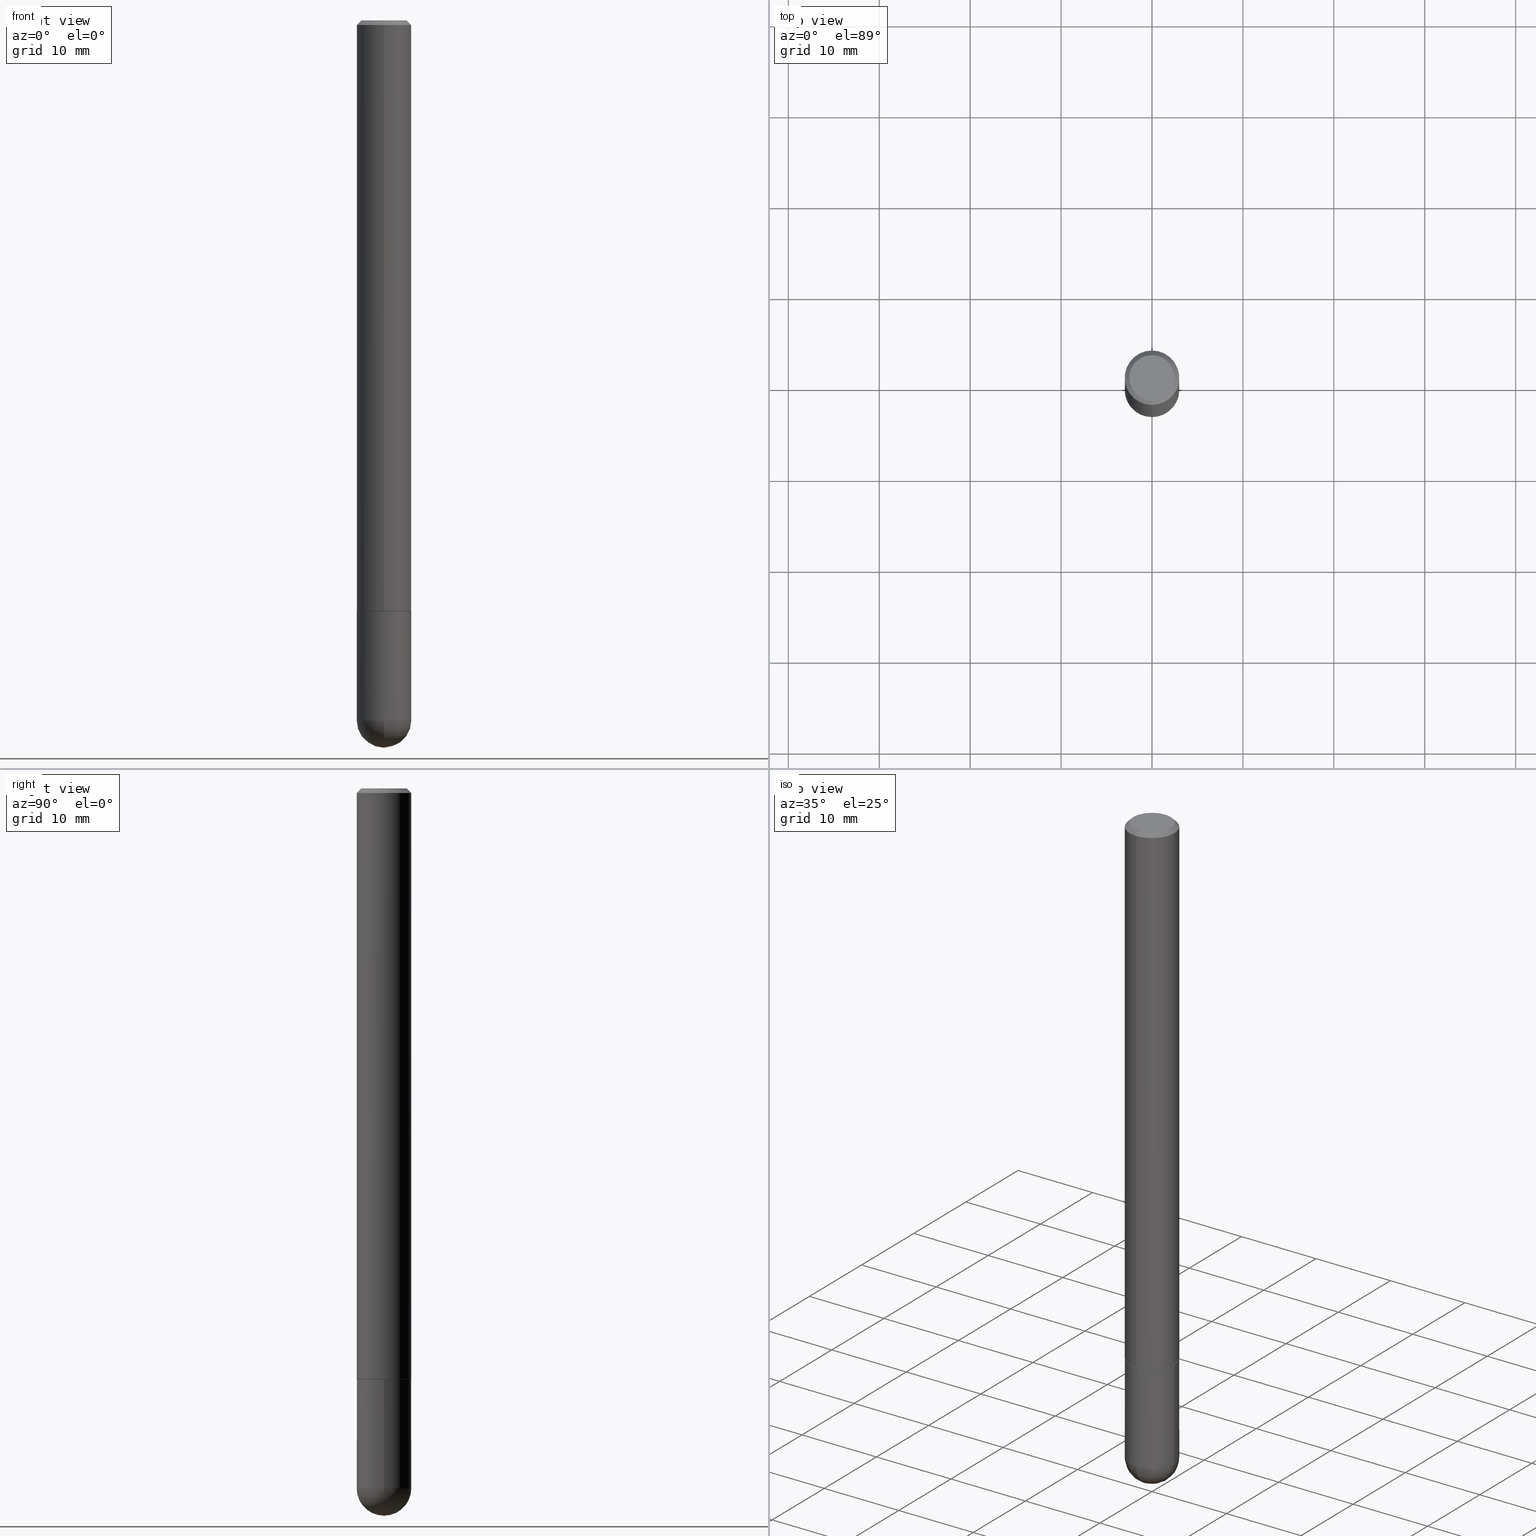
[diagram: canonical four-view strip — front | top / right | iso, engineering-drawing reading convention]
A machine part, canonical four-view strip (front | top / right | iso — engineering-drawing reading convention). The complete STEP part file that produces these views, byte-faithful:
ISO-10303-21;
HEADER;
FILE_DESCRIPTION (( 'STEP AP203' ),
    '1' );
FILE_NAME ('43902.STEP',
    '2024-04-10T11:44:43',
    ( '' ),
    ( '' ),
    'SwSTEP 2.0',
    'SolidWorks 2023',
    '' );
FILE_SCHEMA (( 'CONFIG_CONTROL_DESIGN' ));
ENDSEC;

DATA;
#1 = CARTESIAN_POINT ( 'NONE',  ( -8.391509709326067066E-16, -0.1181000000000109740, -3.031499999999998973 ) ) ;
#2 = FACE_OUTER_BOUND ( 'NONE', #132, .T. ) ;
#3 = VERTEX_POINT ( 'NONE', #373 ) ;
#4 = EDGE_CURVE ( 'NONE', #65, #8, #407, .T. ) ;
#5 = DIRECTION ( 'NONE',  ( 1.000000000000000000, -6.982962677686266711E-15, 4.876176775795935793E-29 ) ) ;
#6 = VECTOR ( 'NONE', #367, 39.37007874015748143 ) ;
#7 = AXIS2_PLACEMENT_3D ( 'NONE', #83, #274, #138 ) ;
#8 = VERTEX_POINT ( 'NONE', #249 ) ;
#9 = ORIENTED_EDGE ( 'NONE', *, *, #336, .T. ) ;
#10 = DIRECTION ( 'NONE',  ( -2.445468806185136597E-29, 3.491481338843145583E-15, 1.000000000000000000 ) ) ;
#11 = VERTEX_POINT ( 'NONE', #139 ) ;
#12 = FACE_OUTER_BOUND ( 'NONE', #106, .T. ) ;
#13 = EDGE_CURVE ( 'NONE', #239, #385, #41, .T. ) ;
#14 = CC_DESIGN_APPROVAL ( #115, ( #318 ) ) ;
#15 = EDGE_CURVE ( 'NONE', #356, #11, #142, .T. ) ;
#16 = CIRCLE ( 'NONE', #323, 0.1181000000000002881 ) ;
#17 = VERTEX_POINT ( 'NONE', #207 ) ;
#18 = LINE ( 'NONE', #277, #87 ) ;
#19 = DIRECTION ( 'NONE',  ( 6.982962677686265922E-15, 1.000000000000000000, -3.469747663417776213E-15 ) ) ;
#20 = CARTESIAN_POINT ( 'NONE',  ( 8.246878922347486570E-16, 0.1180999999999999689, -0.02000000000000048614 ) ) ;
#21 = AXIS2_PLACEMENT_3D ( 'NONE', #244, #284, #176 ) ;
#22 = LINE ( 'NONE', #310, #307 ) ;
#23 = AXIS2_PLACEMENT_3D ( 'NONE', #315, #10, #33 ) ;
#24 = DIRECTION ( 'NONE',  ( 6.982962677686265922E-15, 1.000000000000000000, -4.626330217890359081E-15 ) ) ;
#25 = DIRECTION ( 'NONE',  ( -6.982962677686265922E-15, -1.000000000000000000, 3.469747663417776213E-15 ) ) ;
#26 = PERSON_AND_ORGANIZATION ( #231, #178 ) ;
#27 = EDGE_CURVE ( 'NONE', #17, #125, #148, .T. ) ;
#28 = DIRECTION ( 'NONE',  ( -2.445468806185136877E-29, 3.491481338843145188E-15, 1.000000000000000000 ) ) ;
#29 = PERSON_AND_ORGANIZATION ( #231, #178 ) ;
#30 = AXIS2_PLACEMENT_3D ( 'NONE', #281, #403, #376 ) ;
#31 = LOCAL_TIME ( 7, 44, 43.00000000000000000, #280 ) ;
#32 = CC_DESIGN_DATE_AND_TIME_ASSIGNMENT ( #210, #180, ( #410 ) ) ;
#33 = DIRECTION ( 'NONE',  ( 1.000000000000000000, -6.982962677686266711E-15, 4.876176775795935793E-29 ) ) ;
#34 = AXIS2_PLACEMENT_3D ( 'NONE', #392, #240, #47 ) ;
#35 = ORIENTED_EDGE ( 'NONE', *, *, #37, .F. ) ;
#36 = CARTESIAN_POINT ( 'NONE',  ( 7.082318908036356584E-29, -1.105860804684304690E-14, -3.031500000000000306 ) ) ;
#37 = EDGE_CURVE ( 'NONE', #8, #125, #256, .T. ) ;
#38 = EDGE_LOOP ( 'NONE', ( #76, #406 ) ) ;
#39 = CYLINDRICAL_SURFACE ( 'NONE', #23, 0.1181000000000000383 ) ;
#40 = EDGE_LOOP ( 'NONE', ( #271, #391, #127, #267, #165 ) ) ;
#41 = CIRCLE ( 'NONE', #21, 0.1181000000000000383 ) ;
#42 = ADVANCED_FACE ( 'NONE', ( #56 ), #80, .F. ) ;
#43 = ORIENTED_EDGE ( 'NONE', *, *, #108, .T. ) ;
#44 = EDGE_LOOP ( 'NONE', ( #74, #69, #104, #35 ) ) ;
#45 = CARTESIAN_POINT ( 'NONE',  ( 4.901918497829555222E-31, -6.967237424715466014E-17, -0.02000000000000007674 ) ) ;
#46 = ORIENTED_EDGE ( 'NONE', *, *, #220, .F. ) ;
#47 = DIRECTION ( 'NONE',  ( -6.982962677686265922E-15, -1.000000000000000000, 3.483618712357719695E-15 ) ) ;
#48 = AXIS2_PLACEMENT_3D ( 'NONE', #174, #179, #25 ) ;
#49 = CONICAL_SURFACE ( 'NONE', #247, 0.1181000000000000383, 0.7853981633974477239 ) ;
#50 = CARTESIAN_POINT ( 'NONE',  ( -0.1181000000000000383, 8.391509709326785915E-16, -5.809262341591045886E-30 ) ) ;
#51 = MANIFOLD_SOLID_BREP ( 'Body-Move/Copy2[1]', #203 ) ;
#52 = DIRECTION ( 'NONE',  ( -1.000000000000000000, 6.982962677686265922E-15, -4.883557194083112340E-29 ) ) ;
#53 = CARTESIAN_POINT ( 'NONE',  ( -8.246878922347491501E-16, -0.1181000000000001632, 4.114153699294472715E-16 ) ) ;
#54 = DIRECTION ( 'NONE',  ( -2.445468806185136597E-29, 3.491481338843145583E-15, 1.000000000000000000 ) ) ;
#55 =( NAMED_UNIT ( * ) PLANE_ANGLE_UNIT ( ) SI_UNIT ( $, .RADIAN. ) );
#56 = FACE_OUTER_BOUND ( 'NONE', #38, .T. ) ;
#57 = APPROVAL_PERSON_ORGANIZATION ( #90, #170, #404 ) ;
#58 = CARTESIAN_POINT ( 'NONE',  ( 8.246878922348107798E-16, 0.1180999999999911010, -2.559000000000000608 ) ) ;
#59 = APPROVAL_ROLE ( '' ) ;
#60 = EDGE_CURVE ( 'NONE', #8, #65, #16, .T. ) ;
#61 = CARTESIAN_POINT ( 'NONE',  ( 7.413438685950241710E-29, -1.058442567870299344E-14, -3.031499999999999417 ) ) ;
#62 = CLOSED_SHELL ( 'NONE', ( #328, #229, #238, #99, #395, #151, #42, #390 ) ) ;
#63 = AXIS2_PLACEMENT_3D ( 'NONE', #262, #292, #5 ) ;
#64 = CALENDAR_DATE ( 2024, 10, 4 ) ;
#65 = VERTEX_POINT ( 'NONE', #209 ) ;
#66 = FACE_OUTER_BOUND ( 'NONE', #351, .T. ) ;
#67 = APPLICATION_CONTEXT ( 'configuration controlled 3d designs of mechanical parts and assemblies' ) ;
#68 = DIRECTION ( 'NONE',  ( 1.000000000000000000, -6.982962677686270655E-15, 0.000000000000000000 ) ) ;
#69 = ORIENTED_EDGE ( 'NONE', *, *, #157, .T. ) ;
#70 = SPHERICAL_SURFACE ( 'NONE', #141, 0.1181000000000002742 ) ;
#71 = VERTEX_POINT ( 'NONE', #205 ) ;
#72 = FACE_OUTER_BOUND ( 'NONE', #169, .T. ) ;
#73 = AXIS2_PLACEMENT_3D ( 'NONE', #242, #52, #198 ) ;
#74 = ORIENTED_EDGE ( 'NONE', *, *, #60, .T. ) ;
#75 = CARTESIAN_POINT ( 'NONE',  ( -8.177049295569991395E-16, -0.1171000000000089192, -2.559000000000000163 ) ) ;
#76 = ORIENTED_EDGE ( 'NONE', *, *, #183, .F. ) ;
#77 = CARTESIAN_POINT ( 'NONE',  ( 7.082318908036356584E-29, -1.105860804684304690E-14, -3.031500000000000306 ) ) ;
#78 = ORIENTED_EDGE ( 'NONE', *, *, #289, .T. ) ;
#79 = AXIS2_PLACEMENT_3D ( 'NONE', #36, #290, #161 ) ;
#80 = PLANE ( 'NONE',  #246 ) ;
#81 =( LENGTH_UNIT ( ) NAMED_UNIT ( * ) SI_UNIT ( $, .METRE. ) );
#82 = PLANE ( 'NONE',  #163 ) ;
#83 = CARTESIAN_POINT ( 'NONE',  ( 6.272004717972894851E-29, -8.914580284923406084E-15, -2.559000000000000608 ) ) ;
#84 = DIRECTION ( 'NONE',  ( -4.851104656540961119E-15, -0.7071067811865495711, -0.7071067811865454633 ) ) ;
#85 = APPLICATION_PROTOCOL_DEFINITION ( 'international standard', 'config_control_design', 1994, #251 ) ;
#86 = EDGE_CURVE ( 'NONE', #234, #239, #293, .T. ) ;
#87 = VECTOR ( 'NONE', #146, 39.37007874015748854 ) ;
#88 = CARTESIAN_POINT ( 'NONE',  ( -8.102248135368175393E-16, -0.1181000000000001077, -0.01999999999999966735 ) ) ;
#89 = CC_DESIGN_APPROVAL ( #170, ( #410 ) ) ;
#90 = PERSON_AND_ORGANIZATION ( #231, #178 ) ;
#91 = APPROVAL_STATUS ( 'not_yet_approved' ) ;
#92 = DIRECTION ( 'NONE',  ( -6.982962677686266711E-15, -1.000000000000000000, 4.665837734695581453E-15 ) ) ;
#93 = COORDINATED_UNIVERSAL_TIME_OFFSET ( 5, 0, .BEHIND. ) ;
#94 = LINE ( 'NONE', #345, #222 ) ;
#95 = DIRECTION ( 'NONE',  ( -6.982962677686266711E-15, -1.000000000000000000, 4.665837734695581453E-15 ) ) ;
#96 = CONICAL_SURFACE ( 'NONE', #342, 0.1171000000000000096, 0.7853981633974141952 ) ;
#97 = VERTEX_POINT ( 'NONE', #116 ) ;
#98 = ORIENTED_EDGE ( 'NONE', *, *, #366, .T. ) ;
#99 = ADVANCED_FACE ( 'NONE', ( #303 ), #226, .T. ) ;
#100 = ORIENTED_EDGE ( 'NONE', *, *, #4, .F. ) ;
#101 = DIRECTION ( 'NONE',  ( -2.450959248914768678E-29, 3.483618712357719301E-15, 1.000000000000000000 ) ) ;
#102 = EDGE_CURVE ( 'NONE', #193, #65, #18, .T. ) ;
#103 = APPROVAL_PERSON_ORGANIZATION ( #408, #297, #59 ) ;
#104 = ORIENTED_EDGE ( 'NONE', *, *, #145, .F. ) ;
#105 = DIRECTION ( 'NONE',  ( -6.982962677686265922E-15, -1.000000000000000000, 3.483618712357719301E-15 ) ) ;
#106 = EDGE_LOOP ( 'NONE', ( #98, #324 ) ) ;
#107 = DIRECTION ( 'NONE',  ( -6.982962677686265922E-15, -1.000000000000000000, 3.469747663417776213E-15 ) ) ;
#108 = EDGE_CURVE ( 'NONE', #11, #3, #185, .T. ) ;
#109 = LINE ( 'NONE', #112, #6 ) ;
#110 = DIRECTION ( 'NONE',  ( -4.937700262164378437E-15, -0.7071067811865208164, 0.7071067811865739960 ) ) ;
#111 = AXIS2_PLACEMENT_3D ( 'NONE', #167, #400, #208 ) ;
#112 = CARTESIAN_POINT ( 'NONE',  ( 8.391509709326793804E-16, 0.1181000000000001632, -4.114153699294472715E-16 ) ) ;
#113 = CARTESIAN_POINT ( 'NONE',  ( 7.413438685950241710E-29, -1.058442567870299344E-14, -3.031499999999999417 ) ) ;
#114 = PERSON_AND_ORGANIZATION ( #231, #178 ) ;
#115 = APPROVAL ( #91, 'UNSPECIFIED' ) ;
#116 = CARTESIAN_POINT ( 'NONE',  ( 7.376178530984425849E-29, -1.146372045361145882E-14, -3.149600000000000399 ) ) ;
#117 = CALENDAR_DATE ( 2024, 10, 4 ) ;
#118 = DIRECTION ( 'NONE',  ( -2.445468806185136877E-29, 3.491481338843145188E-15, 1.000000000000000000 ) ) ;
#119 = DATE_AND_TIME ( #218, #31 ) ;
#120 = PRODUCT_DEFINITION_SHAPE ( 'NONE', 'NONE',  #410 ) ;
#121 = AXIS2_PLACEMENT_3D ( 'NONE', #333, #335, #19 ) ;
#122 = AXIS2_PLACEMENT_3D ( 'NONE', #245, #201, #278 ) ;
#123 = ORIENTED_EDGE ( 'NONE', *, *, #27, .F. ) ;
#124 = DIRECTION ( 'NONE',  ( -2.450959248914768678E-29, 3.483618712357719301E-15, 1.000000000000000000 ) ) ;
#125 = VERTEX_POINT ( 'NONE', #88 ) ;
#126 = CYLINDRICAL_SURFACE ( 'NONE', #63, 0.1181000000000000383 ) ;
#127 = ORIENTED_EDGE ( 'NONE', *, *, #187, .F. ) ;
#128 = CONICAL_SURFACE ( 'NONE', #7, 0.1171000000000000096, 0.7853981633974141952 ) ;
#129 = ORIENTED_EDGE ( 'NONE', *, *, #13, .F. ) ;
#130 = ORIENTED_EDGE ( 'NONE', *, *, #60, .F. ) ;
#131 = DIRECTION ( 'NONE',  ( 4.937700262164544887E-15, 0.7071067811865446862, -0.7071067811865503483 ) ) ;
#132 = EDGE_LOOP ( 'NONE', ( #352, #230, #320, #295, #199 ) ) ;
#133 = CYLINDRICAL_SURFACE ( 'NONE', #34, 0.1181000000000001632 ) ;
#134 = AXIS2_PLACEMENT_3D ( 'NONE', #228, #224, #68 ) ;
#135 = EDGE_LOOP ( 'NONE', ( #123, #166, #265, #9 ) ) ;
#136 = APPLICATION_PROTOCOL_DEFINITION ( 'international standard', 'config_control_design', 1994, #67 ) ;
#137 = CARTESIAN_POINT ( 'NONE',  ( 6.257954675027765161E-29, -8.934700746099610252E-15, -2.559000000000000163 ) ) ;
#138 = DIRECTION ( 'NONE',  ( -6.982962677686266711E-15, -1.000000000000000000, 4.665837734695581453E-15 ) ) ;
#139 = CARTESIAN_POINT ( 'NONE',  ( -0.1181000000000000383, -8.920412241468623652E-15, -2.559000000000000163 ) ) ;
#140 =( NAMED_UNIT ( * ) SI_UNIT ( $, .STERADIAN. ) SOLID_ANGLE_UNIT ( ) );
#141 = AXIS2_PLACEMENT_3D ( 'NONE', #77, #327, #24 ) ;
#142 = LINE ( 'NONE', #50, #287 ) ;
#143 = MECHANICAL_CONTEXT ( 'NONE', #67, 'mechanical' ) ;
#144 = CC_DESIGN_DATE_AND_TIME_ASSIGNMENT ( #375, #312, ( #318 ) ) ;
#145 = EDGE_CURVE ( 'NONE', #125, #384, #362, .T. ) ;
#146 = DIRECTION ( 'NONE',  ( 5.024295867787889629E-15, 0.7071067811865257013, 0.7071067811865691111 ) ) ;
#147 = PERSON_AND_ORGANIZATION_ROLE ( 'creator' ) ;
#148 = LINE ( 'NONE', #329, #263 ) ;
#149 = CALENDAR_DATE ( 2024, 10, 4 ) ;
#150 = CIRCLE ( 'NONE', #212, 0.1181000000000000383 ) ;
#151 = ADVANCED_FACE ( 'NONE', ( #213 ), #96, .T. ) ;
#152 = APPROVAL_DATE_TIME ( #409, #115 ) ;
#153 = AXIS2_PLACEMENT_3D ( 'NONE', #137, #332, #275 ) ;
#154 = ORIENTED_EDGE ( 'NONE', *, *, #216, .T. ) ;
#155 = CC_DESIGN_APPROVAL ( #297, ( #288 ) ) ;
#156 = DIRECTION ( 'NONE',  ( -6.982962677686265922E-15, -1.000000000000000000, 3.483618712357719695E-15 ) ) ;
#157 = EDGE_CURVE ( 'NONE', #65, #384, #109, .T. ) ;
#158 = ADVANCED_FACE ( 'NONE', ( #401 ), #82, .F. ) ;
#159 = EDGE_LOOP ( 'NONE', ( #393, #299, #300, #350 ) ) ;
#160 = ORIENTED_EDGE ( 'NONE', *, *, #187, .T. ) ;
#161 = DIRECTION ( 'NONE',  ( -7.105427357601001070E-15, -1.000000000000000000, 0.000000000000000000 ) ) ;
#162 = ORIENTED_EDGE ( 'NONE', *, *, #359, .T. ) ;
#163 = AXIS2_PLACEMENT_3D ( 'NONE', #58, #181, #305 ) ;
#164 = AXIS2_PLACEMENT_3D ( 'NONE', #192, #379, #95 ) ;
#165 = ORIENTED_EDGE ( 'NONE', *, *, #13, .T. ) ;
#166 = ORIENTED_EDGE ( 'NONE', *, *, #366, .F. ) ;
#167 = CARTESIAN_POINT ( 'NONE',  ( 7.082318908036356584E-29, -1.105860804684304690E-14, -3.031500000000000306 ) ) ;
#168 = EDGE_CURVE ( 'NONE', #239, #3, #22, .T. ) ;
#169 = EDGE_LOOP ( 'NONE', ( #308, #387, #130, #322 ) ) ;
#170 = APPROVAL ( #402, 'UNSPECIFIED' ) ;
#171 = DIRECTION ( 'NONE',  ( 1.000000000000000000, -6.982962677686270655E-15, 0.000000000000000000 ) ) ;
#172 = UNCERTAINTY_MEASURE_WITH_UNIT (LENGTH_MEASURE( 1.000000000000000082E-05 ), #175, 'distance_accuracy_value', 'NONE');
#173 = EDGE_CURVE ( 'NONE', #385, #356, #398, .T. ) ;
#174 = CARTESIAN_POINT ( 'NONE',  ( 4.901918497829555222E-31, -6.967237424715466014E-17, -0.02000000000000007674 ) ) ;
#175 =( CONVERSION_BASED_UNIT ( 'INCH', #236 ) LENGTH_UNIT ( ) NAMED_UNIT ( #372 ) );
#176 = DIRECTION ( 'NONE',  ( 1.000000000000000000, -6.982962677686270655E-15, 0.000000000000000000 ) ) ;
#177 = DIRECTION ( 'NONE',  ( 0.000000000000000000, 0.000000000000000000, 1.000000000000000000 ) ) ;
#178 = ORGANIZATION ( 'UNSPECIFIED', 'UNSPECIFIED', '' ) ;
#179 = DIRECTION ( 'NONE',  ( -2.450959248914768678E-29, 3.483618712357719301E-15, 1.000000000000000000 ) ) ;
#180 = DATE_TIME_ROLE ( 'creation_date' ) ;
#181 = DIRECTION ( 'NONE',  ( 2.438088387897960049E-29, -3.491481338843145188E-15, -1.000000000000000000 ) ) ;
#182 = PERSON_AND_ORGANIZATION_ROLE ( 'design_supplier' ) ;
#183 = EDGE_CURVE ( 'NONE', #232, #193, #354, .T. ) ;
#184 = DIRECTION ( 'NONE',  ( 1.000000000000000000, -6.982962677686270655E-15, 0.000000000000000000 ) ) ;
#185 = CIRCLE ( 'NONE', #153, 0.1181000000000000383 ) ;
#186 = AXIS2_PLACEMENT_3D ( 'NONE', #276, #397, #105 ) ;
#187 = EDGE_CURVE ( 'NONE', #3, #11, #317, .T. ) ;
#188 = ORIENTED_EDGE ( 'NONE', *, *, #369, .T. ) ;
#189 = FACE_OUTER_BOUND ( 'NONE', #40, .T. ) ;
#190 = CIRCLE ( 'NONE', #164, 0.1171000000000000096 ) ;
#191 = CARTESIAN_POINT ( 'NONE',  ( -8.177049295569991395E-16, -0.1171000000000089192, -2.559000000000000163 ) ) ;
#192 = CARTESIAN_POINT ( 'NONE',  ( 6.272004717972894851E-29, -8.914580284923406084E-15, -2.559000000000000608 ) ) ;
#193 = VERTEX_POINT ( 'NONE', #298 ) ;
#194 = FACE_OUTER_BOUND ( 'NONE', #357, .T. ) ;
#195 = ORIENTED_EDGE ( 'NONE', *, *, #145, .T. ) ;
#196 = AXIS2_PLACEMENT_3D ( 'NONE', #319, #233, #353 ) ;
#197 = ORIENTED_EDGE ( 'NONE', *, *, #27, .T. ) ;
#198 = DIRECTION ( 'NONE',  ( 6.982962677686265922E-15, 1.000000000000000000, -4.626330217890359081E-15 ) ) ;
#199 = ORIENTED_EDGE ( 'NONE', *, *, #108, .F. ) ;
#200 = PRODUCT_RELATED_PRODUCT_CATEGORY ( 'detail', '', ( #259 ) ) ;
#201 = DIRECTION ( 'NONE',  ( -2.450959248914768678E-29, 3.483618712357719301E-15, 1.000000000000000000 ) ) ;
#202 = DIRECTION ( 'NONE',  ( -6.982962677686265922E-15, -1.000000000000000000, 3.483618712357719301E-15 ) ) ;
#203 = CLOSED_SHELL ( 'NONE', ( #253, #380, #316, #158, #301 ) ) ;
#204 = AXIS2_PLACEMENT_3D ( 'NONE', #394, #365, #304 ) ;
#205 = CARTESIAN_POINT ( 'NONE',  ( 7.548582654578851616E-16, 0.09809999999999984011, -1.973848946770980761E-16 ) ) ;
#206 = ADVANCED_BREP_SHAPE_REPRESENTATION ( '43902', ( #51, #314, #412 ), #355 ) ;
#207 = CARTESIAN_POINT ( 'NONE',  ( -7.416198335591017148E-16, -0.09809999999999984011, 4.861010966874853470E-16 ) ) ;
#208 = DIRECTION ( 'NONE',  ( 6.982962677686265922E-15, 1.000000000000000000, 0.000000000000000000 ) ) ;
#209 = CARTESIAN_POINT ( 'NONE',  ( 8.391509709327114278E-16, 0.1180999999999913785, -2.558000000000001162 ) ) ;
#210 = DATE_AND_TIME ( #117, #330 ) ;
#211 = AXIS2_PLACEMENT_3D ( 'NONE', #217, #313, #92 ) ;
#212 = AXIS2_PLACEMENT_3D ( 'NONE', #45, #101, #107 ) ;
#213 = FACE_OUTER_BOUND ( 'NONE', #296, .T. ) ;
#214 = PERSON_AND_ORGANIZATION_ROLE ( 'design_owner' ) ;
#215 = COORDINATED_UNIVERSAL_TIME_OFFSET ( 5, 0, .BEHIND. ) ;
#216 = EDGE_CURVE ( 'NONE', #193, #232, #190, .T. ) ;
#217 = CARTESIAN_POINT ( 'NONE',  ( 6.272004717972894851E-29, -8.914580284923406084E-15, -2.559000000000000608 ) ) ;
#218 = CALENDAR_DATE ( 2024, 10, 4 ) ;
#219 = PERSON_AND_ORGANIZATION ( #231, #178 ) ;
#220 = EDGE_CURVE ( 'NONE', #71, #384, #94, .T. ) ;
#221 = AXIS2_PLACEMENT_3D ( 'NONE', #61, #340, #184 ) ;
#222 = VECTOR ( 'NONE', #131, 39.37007874015748143 ) ;
#223 = CC_DESIGN_PERSON_AND_ORGANIZATION_ASSIGNMENT ( #377, #311, ( #318 ) ) ;
#224 = DIRECTION ( 'NONE',  ( -2.445468806185136597E-29, 3.491481338843145583E-15, 1.000000000000000000 ) ) ;
#225 = CYLINDRICAL_SURFACE ( 'NONE', #389, 0.1181000000000001632 ) ;
#226 = CONICAL_SURFACE ( 'NONE', #121, 0.1181000000000000383, 0.7853981633974477239 ) ;
#227 = ORIENTED_EDGE ( 'NONE', *, *, #173, .F. ) ;
#228 = CARTESIAN_POINT ( 'NONE',  ( 6.257954675027765161E-29, -8.934700746099610252E-15, -2.559000000000000163 ) ) ;
#229 = ADVANCED_FACE ( 'NONE', ( #382 ), #225, .T. ) ;
#230 = ORIENTED_EDGE ( 'NONE', *, *, #261, .T. ) ;
#231 = PERSON ( 'UNSPECIFIED', 'UNSPECIFIED', 'UNSPECIFIED', ('UNSPECIFIED'), ('UNSPECIFIED'), ('UNSPECIFIED') ) ;
#232 = VERTEX_POINT ( 'NONE', #191 ) ;
#233 = DIRECTION ( 'NONE',  ( -2.445468806185136597E-29, 3.491481338843145583E-15, 1.000000000000000000 ) ) ;
#234 = VERTEX_POINT ( 'NONE', #1 ) ;
#235 = VECTOR ( 'NONE', #363, 39.37007874015748143 ) ;
#236 = LENGTH_MEASURE_WITH_UNIT ( LENGTH_MEASURE( 0.02539999999999999897 ), #81 );
#237 = CC_DESIGN_PERSON_AND_ORGANIZATION_ASSIGNMENT ( #29, #214, ( #259 ) ) ;
#238 = ADVANCED_FACE ( 'NONE', ( #66 ), #49, .T. ) ;
#239 = VERTEX_POINT ( 'NONE', #386 ) ;
#240 = DIRECTION ( 'NONE',  ( -2.450959248914768678E-29, 3.483618712357719301E-15, 1.000000000000000000 ) ) ;
#241 = ORIENTED_EDGE ( 'NONE', *, *, #261, .F. ) ;
#242 = CARTESIAN_POINT ( 'NONE',  ( 7.082318908036356584E-29, -1.105860804684304690E-14, -3.031500000000000306 ) ) ;
#243 = APPROVAL_PERSON_ORGANIZATION ( #219, #115, #405 ) ;
#244 = CARTESIAN_POINT ( 'NONE',  ( 7.413438685950241710E-29, -1.058442567870299344E-14, -3.031499999999999417 ) ) ;
#245 = CARTESIAN_POINT ( 'NONE',  ( -3.538158228144516706E-45, 5.028885819421182056E-31, 1.443581010051936478E-16 ) ) ;
#246 = AXIS2_PLACEMENT_3D ( 'NONE', #279, #248, #202 ) ;
#247 = AXIS2_PLACEMENT_3D ( 'NONE', #266, #268, #321 ) ;
#248 = DIRECTION ( 'NONE',  ( -2.450959248914768117E-29, 3.483618712357719301E-15, 1.000000000000000000 ) ) ;
#249 = CARTESIAN_POINT ( 'NONE',  ( -8.246878922346873231E-16, -0.1181000000000091976, -2.557999999999999829 ) ) ;
#250 = COORDINATED_UNIVERSAL_TIME_OFFSET ( 5, 0, .BEHIND. ) ;
#251 = APPLICATION_CONTEXT ( 'configuration controlled 3d designs of mechanical parts and assemblies' ) ;
#252 = DIRECTION ( 'NONE',  ( -6.982962677686265922E-15, -1.000000000000000000, 4.626330217890358292E-15 ) ) ;
#253 = ADVANCED_FACE ( 'NONE', ( #189 ), #39, .T. ) ;
#254 = PERSON_AND_ORGANIZATION ( #231, #178 ) ;
#255 = CC_DESIGN_PERSON_AND_ORGANIZATION_ASSIGNMENT ( #254, #182, ( #288 ) ) ;
#256 = LINE ( 'NONE', #53, #235 ) ;
#257 = SECURITY_CLASSIFICATION_LEVEL ( 'unclassified' ) ;
#258 = CALENDAR_DATE ( 2024, 10, 4 ) ;
#259 = PRODUCT ( '43902', '43902', '', ( #143 ) ) ;
#260 = VECTOR ( 'NONE', #110, 39.37007874015748854 ) ;
#261 = EDGE_CURVE ( 'NONE', #356, #234, #343, .T. ) ;
#262 = CARTESIAN_POINT ( 'NONE',  ( 0.000000000000000000, 0.000000000000000000, 0.000000000000000000 ) ) ;
#263 = VECTOR ( 'NONE', #84, 39.37007874015748143 ) ;
#264 = CIRCLE ( 'NONE', #79, 0.1181000000000002742 ) ;
#265 = ORIENTED_EDGE ( 'NONE', *, *, #220, .T. ) ;
#266 = CARTESIAN_POINT ( 'NONE',  ( 4.901918497829555222E-31, -6.967237424715466014E-17, -0.02000000000000007674 ) ) ;
#267 = ORIENTED_EDGE ( 'NONE', *, *, #168, .F. ) ;
#268 = DIRECTION ( 'NONE',  ( 2.450959248914768678E-29, -3.483618712357719301E-15, -1.000000000000000000 ) ) ;
#269 = ORIENTED_EDGE ( 'NONE', *, *, #102, .F. ) ;
#270 = LINE ( 'NONE', #75, #260 ) ;
#271 = ORIENTED_EDGE ( 'NONE', *, *, #173, .T. ) ;
#272 = CARTESIAN_POINT ( 'NONE',  ( 8.246878922348216267E-16, 0.1180999999999893246, -3.031500000000000306 ) ) ;
#273 = ORIENTED_EDGE ( 'NONE', *, *, #341, .F. ) ;
#274 = DIRECTION ( 'NONE',  ( -2.450959248914768678E-29, 3.483618712357719301E-15, 1.000000000000000000 ) ) ;
#275 = DIRECTION ( 'NONE',  ( 1.000000000000000000, -6.982962677686270655E-15, 0.000000000000000000 ) ) ;
#276 = CARTESIAN_POINT ( 'NONE',  ( -3.538158228144516706E-45, 5.028885819421182056E-31, 1.443581010051936478E-16 ) ) ;
#277 = CARTESIAN_POINT ( 'NONE',  ( 8.320455435751400020E-16, 0.1170999999999911001, -2.559000000000001496 ) ) ;
#278 = DIRECTION ( 'NONE',  ( -6.982962677686265922E-15, -1.000000000000000000, 3.483618712357719301E-15 ) ) ;
#279 = CARTESIAN_POINT ( 'NONE',  ( 6.272004717972894851E-29, -8.914580284923406084E-15, -2.559000000000000608 ) ) ;
#280 = COORDINATED_UNIVERSAL_TIME_OFFSET ( 5, 0, .BEHIND. ) ;
#281 = CARTESIAN_POINT ( 'NONE',  ( 6.269553758723979197E-29, -8.911096666211047225E-15, -2.558000000000000274 ) ) ;
#282 = PERSON_AND_ORGANIZATION_ROLE ( 'creator' ) ;
#283 = CC_DESIGN_PERSON_AND_ORGANIZATION_ASSIGNMENT ( #26, #282, ( #288 ) ) ;
#284 = DIRECTION ( 'NONE',  ( -2.445468806185136597E-29, 3.491481338843145583E-15, 1.000000000000000000 ) ) ;
#285 = APPROVAL_DATE_TIME ( #374, #297 ) ;
#286 = LOCAL_TIME ( 7, 44, 43.00000000000000000, #93 ) ;
#287 = VECTOR ( 'NONE', #118, 39.37007874015748143 ) ;
#288 = PRODUCT_DEFINITION_FORMATION_WITH_SPECIFIED_SOURCE ( 'ANY', '', #259, .NOT_KNOWN. ) ;
#289 = EDGE_CURVE ( 'NONE', #97, #234, #264, .T. ) ;
#290 = DIRECTION ( 'NONE',  ( -1.000000000000000000, 7.105427357601001070E-15, -4.926315508542082329E-29 ) ) ;
#291 = ORIENTED_EDGE ( 'NONE', *, *, #369, .F. ) ;
#292 = DIRECTION ( 'NONE',  ( -2.445468806185136597E-29, 3.491481338843145583E-15, 1.000000000000000000 ) ) ;
#293 = CIRCLE ( 'NONE', #349, 0.1181000000000000383 ) ;
#294 = CIRCLE ( 'NONE', #122, 0.09809999999999984011 ) ;
#295 = ORIENTED_EDGE ( 'NONE', *, *, #168, .T. ) ;
#296 = EDGE_LOOP ( 'NONE', ( #269, #154, #162, #100 ) ) ;
#297 = APPROVAL ( #309, 'UNSPECIFIED' ) ;
#298 = CARTESIAN_POINT ( 'NONE',  ( 8.355982572539419852E-16, 0.1170999999999911001, -2.559000000000001496 ) ) ;
#299 = ORIENTED_EDGE ( 'NONE', *, *, #4, .T. ) ;
#300 = ORIENTED_EDGE ( 'NONE', *, *, #37, .T. ) ;
#301 = ADVANCED_FACE ( 'NONE', ( #2 ), #126, .T. ) ;
#302 = DIRECTION ( 'NONE',  ( -2.450959248914768678E-29, 3.483618712357719301E-15, 1.000000000000000000 ) ) ;
#303 = FACE_OUTER_BOUND ( 'NONE', #135, .T. ) ;
#304 = DIRECTION ( 'NONE',  ( 6.982962677686265922E-15, 1.000000000000000000, -3.483618712357719301E-15 ) ) ;
#305 = DIRECTION ( 'NONE',  ( -1.000000000000000000, 6.982962677686265922E-15, -4.876176775795935793E-29 ) ) ;
#306 = DIRECTION ( 'NONE',  ( 1.000000000000000000, 0.000000000000000000, 0.000000000000000000 ) ) ;
#307 = VECTOR ( 'NONE', #28, 39.37007874015748143 ) ;
#308 = ORIENTED_EDGE ( 'NONE', *, *, #183, .T. ) ;
#309 = APPROVAL_STATUS ( 'not_yet_approved' ) ;
#310 = CARTESIAN_POINT ( 'NONE',  ( 0.1181000000000000383, -8.246878922347483612E-16, 5.758764772215001842E-30 ) ) ;
#311 = PERSON_AND_ORGANIZATION_ROLE ( 'classification_officer' ) ;
#312 = DATE_TIME_ROLE ( 'classification_date' ) ;
#313 = DIRECTION ( 'NONE',  ( -2.450959248914768678E-29, 3.483618712357719301E-15, 1.000000000000000000 ) ) ;
#314 = MANIFOLD_SOLID_BREP ( 'Body-Move/Copy2[2]', #62 ) ;
#315 = CARTESIAN_POINT ( 'NONE',  ( 0.000000000000000000, 0.000000000000000000, 0.000000000000000000 ) ) ;
#316 = ADVANCED_FACE ( 'NONE', ( #194 ), #70, .T. ) ;
#317 = CIRCLE ( 'NONE', #134, 0.1181000000000000383 ) ;
#318 = SECURITY_CLASSIFICATION ( '', '', #257 ) ;
#319 = CARTESIAN_POINT ( 'NONE',  ( 7.413438685950241710E-29, -1.058442567870299344E-14, -3.031499999999999417 ) ) ;
#320 = ORIENTED_EDGE ( 'NONE', *, *, #86, .T. ) ;
#321 = DIRECTION ( 'NONE',  ( 6.982962677686265922E-15, 1.000000000000000000, -3.469747663417776213E-15 ) ) ;
#322 = ORIENTED_EDGE ( 'NONE', *, *, #359, .F. ) ;
#323 = AXIS2_PLACEMENT_3D ( 'NONE', #370, #302, #252 ) ;
#324 = ORIENTED_EDGE ( 'NONE', *, *, #341, .T. ) ;
#325 = ORIENTED_EDGE ( 'NONE', *, *, #86, .F. ) ;
#326 = EDGE_LOOP ( 'NONE', ( #160, #43 ) ) ;
#327 = DIRECTION ( 'NONE',  ( -1.000000000000000000, 6.982962677686265922E-15, -4.883557194083112340E-29 ) ) ;
#328 = ADVANCED_FACE ( 'NONE', ( #72 ), #128, .T. ) ;
#329 = CARTESIAN_POINT ( 'NONE',  ( -8.102248135368175393E-16, -0.1181000000000001077, -0.01999999999999966735 ) ) ;
#330 = LOCAL_TIME ( 7, 44, 43.00000000000000000, #250 ) ;
#331 = SPHERICAL_SURFACE ( 'NONE', #73, 0.1181000000000002742 ) ;
#332 = DIRECTION ( 'NONE',  ( -2.445468806185136597E-29, 3.491481338843145583E-15, 1.000000000000000000 ) ) ;
#333 = CARTESIAN_POINT ( 'NONE',  ( 4.901918497829555222E-31, -6.967237424715466014E-17, -0.02000000000000007674 ) ) ;
#334 = FACE_OUTER_BOUND ( 'NONE', #360, .T. ) ;
#335 = DIRECTION ( 'NONE',  ( 2.450959248914768678E-29, -3.483618712357719301E-15, -1.000000000000000000 ) ) ;
#336 = EDGE_CURVE ( 'NONE', #384, #125, #150, .T. ) ;
#337 = COORDINATED_UNIVERSAL_TIME_OFFSET ( 5, 0, .BEHIND. ) ;
#338 = LOCAL_TIME ( 7, 44, 43.00000000000000000, #337 ) ;
#339 = CARTESIAN_POINT ( 'NONE',  ( 6.272004717972894851E-29, -8.914580284923406084E-15, -2.559000000000000608 ) ) ;
#340 = DIRECTION ( 'NONE',  ( -2.445468806185136597E-29, 3.491481338843145583E-15, 1.000000000000000000 ) ) ;
#341 = EDGE_CURVE ( 'NONE', #17, #71, #364, .T. ) ;
#342 = AXIS2_PLACEMENT_3D ( 'NONE', #339, #396, #399 ) ;
#343 = CIRCLE ( 'NONE', #196, 0.1181000000000000383 ) ;
#344 = ORIENTED_EDGE ( 'NONE', *, *, #289, .F. ) ;
#345 = CARTESIAN_POINT ( 'NONE',  ( 8.246878922347486570E-16, 0.1180999999999999689, -0.02000000000000048614 ) ) ;
#346 = CC_DESIGN_PERSON_AND_ORGANIZATION_ASSIGNMENT ( #114, #147, ( #410 ) ) ;
#347 = CARTESIAN_POINT ( 'NONE',  ( 0.000000000000000000, 0.000000000000000000, 0.000000000000000000 ) ) ;
#348 = CC_DESIGN_SECURITY_CLASSIFICATION ( #318, ( #288 ) ) ;
#349 = AXIS2_PLACEMENT_3D ( 'NONE', #113, #54, #171 ) ;
#350 = ORIENTED_EDGE ( 'NONE', *, *, #336, .F. ) ;
#351 = EDGE_LOOP ( 'NONE', ( #273, #197, #195, #46 ) ) ;
#352 = ORIENTED_EDGE ( 'NONE', *, *, #15, .F. ) ;
#353 = DIRECTION ( 'NONE',  ( 1.000000000000000000, -6.982962677686270655E-15, 0.000000000000000000 ) ) ;
#354 = CIRCLE ( 'NONE', #211, 0.1171000000000000096 ) ;
#355 =( GEOMETRIC_REPRESENTATION_CONTEXT ( 3 ) GLOBAL_UNCERTAINTY_ASSIGNED_CONTEXT ( ( #172 ) ) GLOBAL_UNIT_ASSIGNED_CONTEXT ( ( #175, #55, #140 ) ) REPRESENTATION_CONTEXT ( 'NONE', 'WORKASPACE' ) );
#356 = VERTEX_POINT ( 'NONE', #358 ) ;
#357 = EDGE_LOOP ( 'NONE', ( #344, #188, #129, #325 ) ) ;
#358 = CARTESIAN_POINT ( 'NONE',  ( -0.1181000000000000383, -8.920412241468623652E-15, -3.031499999999999417 ) ) ;
#359 = EDGE_CURVE ( 'NONE', #232, #8, #270, .T. ) ;
#360 = EDGE_LOOP ( 'NONE', ( #291, #78, #241, #227 ) ) ;
#361 = FACE_OUTER_BOUND ( 'NONE', #159, .T. ) ;
#362 = CIRCLE ( 'NONE', #48, 0.1181000000000000383 ) ;
#363 = DIRECTION ( 'NONE',  ( -2.450959248914768678E-29, 3.483618712357719301E-15, 1.000000000000000000 ) ) ;
#364 = CIRCLE ( 'NONE', #186, 0.09809999999999984011 ) ;
#365 = DIRECTION ( 'NONE',  ( 2.450959248914768117E-29, -3.483618712357719301E-15, -1.000000000000000000 ) ) ;
#366 = EDGE_CURVE ( 'NONE', #71, #17, #294, .T. ) ;
#367 = DIRECTION ( 'NONE',  ( -2.450959248914768678E-29, 3.483618712357719301E-15, 1.000000000000000000 ) ) ;
#368 = CARTESIAN_POINT ( 'NONE',  ( 0.000000000000000000, 0.000000000000000000, 0.000000000000000000 ) ) ;
#369 = EDGE_CURVE ( 'NONE', #97, #385, #383, .T. ) ;
#370 = CARTESIAN_POINT ( 'NONE',  ( 6.269553758723979197E-29, -8.911096666211047225E-15, -2.558000000000000274 ) ) ;
#371 = APPROVAL_DATE_TIME ( #119, #170 ) ;
#372 = DIMENSIONAL_EXPONENTS ( 1.000000000000000000, 0.000000000000000000, 0.000000000000000000, 0.000000000000000000, 0.000000000000000000, 0.000000000000000000, 0.000000000000000000 ) ;
#373 = CARTESIAN_POINT ( 'NONE',  ( 0.1181000000000000383, -9.759388638334360093E-15, -2.559000000000000163 ) ) ;
#374 = DATE_AND_TIME ( #149, #338 ) ;
#375 = DATE_AND_TIME ( #258, #286 ) ;
#376 = DIRECTION ( 'NONE',  ( -6.982962677686265922E-15, -1.000000000000000000, 4.626330217890358292E-15 ) ) ;
#377 = PERSON_AND_ORGANIZATION ( #231, #178 ) ;
#378 = LOCAL_TIME ( 7, 44, 43.00000000000000000, #215 ) ;
#379 = DIRECTION ( 'NONE',  ( -2.450959248914768678E-29, 3.483618712357719301E-15, 1.000000000000000000 ) ) ;
#380 = ADVANCED_FACE ( 'NONE', ( #334 ), #331, .T. ) ;
#381 = DESIGN_CONTEXT ( 'detailed design', #251, 'design' ) ;
#382 = FACE_OUTER_BOUND ( 'NONE', #44, .T. ) ;
#383 = CIRCLE ( 'NONE', #111, 0.1181000000000002742 ) ;
#384 = VERTEX_POINT ( 'NONE', #20 ) ;
#385 = VERTEX_POINT ( 'NONE', #272 ) ;
#386 = CARTESIAN_POINT ( 'NONE',  ( 0.1181000000000000383, -1.058425110463605090E-14, -3.031499999999999417 ) ) ;
#387 = ORIENTED_EDGE ( 'NONE', *, *, #102, .T. ) ;
#388 = PLANE ( 'NONE',  #204 ) ;
#389 = AXIS2_PLACEMENT_3D ( 'NONE', #347, #124, #156 ) ;
#390 = ADVANCED_FACE ( 'NONE', ( #12 ), #388, .F. ) ;
#391 = ORIENTED_EDGE ( 'NONE', *, *, #15, .T. ) ;
#392 = CARTESIAN_POINT ( 'NONE',  ( 0.000000000000000000, 0.000000000000000000, 0.000000000000000000 ) ) ;
#393 = ORIENTED_EDGE ( 'NONE', *, *, #157, .F. ) ;
#394 = CARTESIAN_POINT ( 'NONE',  ( 6.850286386810215676E-16, 0.09809999999999984011, -2.695639451796948383E-16 ) ) ;
#395 = ADVANCED_FACE ( 'NONE', ( #361 ), #133, .T. ) ;
#396 = DIRECTION ( 'NONE',  ( -2.450959248914768678E-29, 3.483618712357719301E-15, 1.000000000000000000 ) ) ;
#397 = DIRECTION ( 'NONE',  ( -2.450959248914768678E-29, 3.483618712357719301E-15, 1.000000000000000000 ) ) ;
#398 = CIRCLE ( 'NONE', #221, 0.1181000000000000383 ) ;
#399 = DIRECTION ( 'NONE',  ( -6.982962677686266711E-15, -1.000000000000000000, 4.665837734695581453E-15 ) ) ;
#400 = DIRECTION ( 'NONE',  ( 1.000000000000000000, -6.982962677686265922E-15, 4.883557194083112340E-29 ) ) ;
#401 = FACE_OUTER_BOUND ( 'NONE', #326, .T. ) ;
#402 = APPROVAL_STATUS ( 'not_yet_approved' ) ;
#403 = DIRECTION ( 'NONE',  ( -2.450959248914768678E-29, 3.483618712357719301E-15, 1.000000000000000000 ) ) ;
#404 = APPROVAL_ROLE ( '' ) ;
#405 = APPROVAL_ROLE ( '' ) ;
#406 = ORIENTED_EDGE ( 'NONE', *, *, #216, .F. ) ;
#407 = CIRCLE ( 'NONE', #30, 0.1181000000000002881 ) ;
#408 = PERSON_AND_ORGANIZATION ( #231, #178 ) ;
#409 = DATE_AND_TIME ( #64, #378 ) ;
#410 = PRODUCT_DEFINITION ( 'UNKNOWN', '', #288, #381 ) ;
#411 = SHAPE_DEFINITION_REPRESENTATION ( #120, #206 ) ;
#412 = AXIS2_PLACEMENT_3D ( 'NONE', #368, #177, #306 ) ;
ENDSEC;
END-ISO-10303-21;
